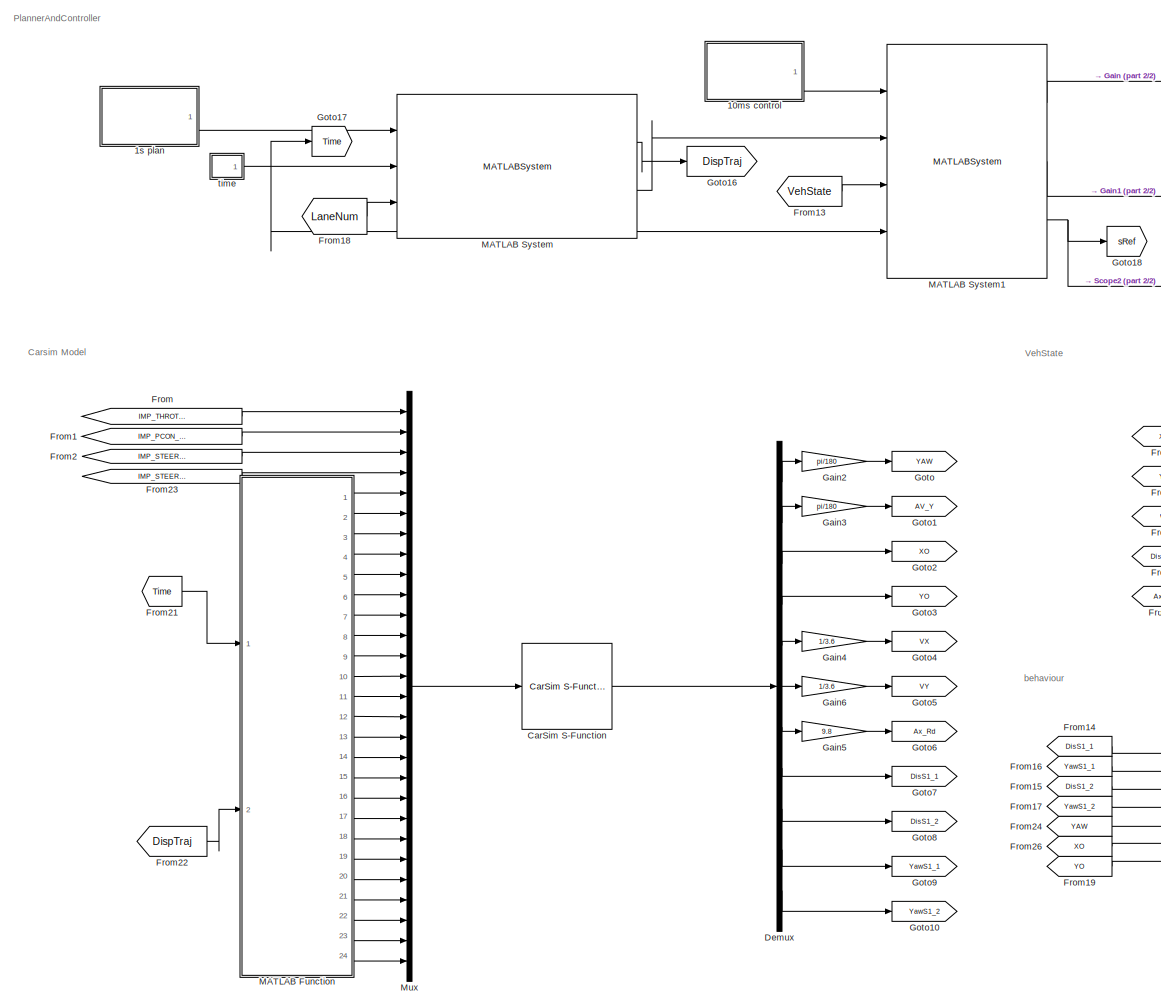
[diagram: root canvas - part 1/2, left side, full height]
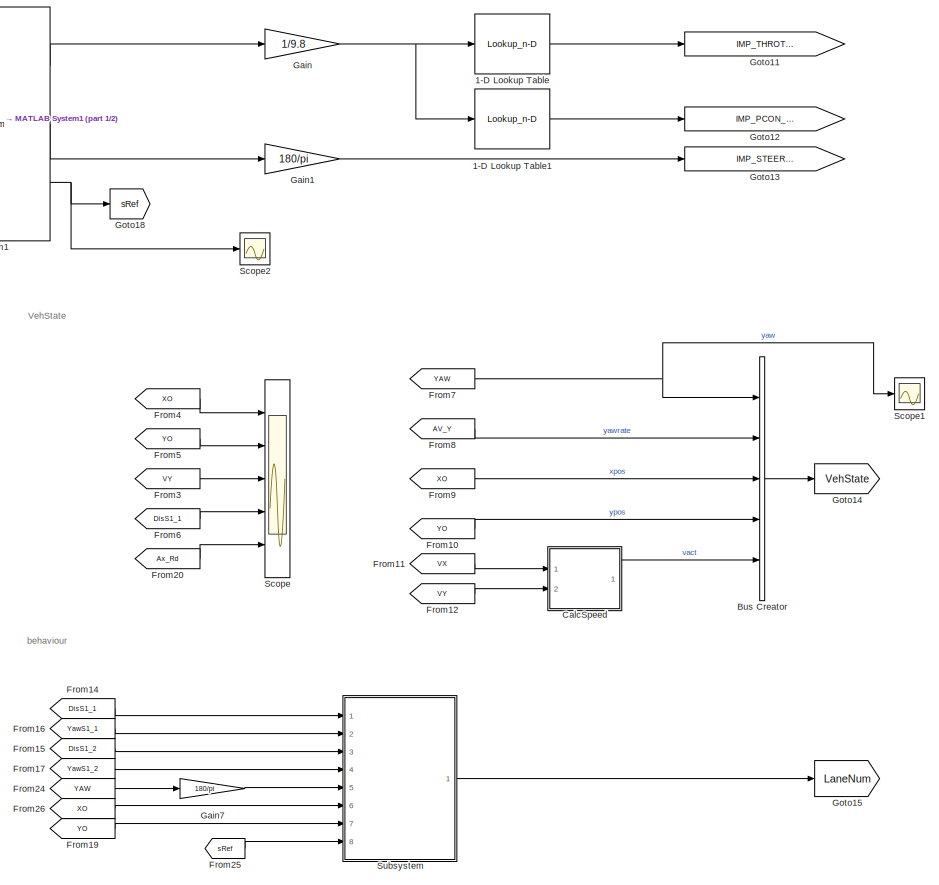
[diagram: root canvas - part 2/2, right side, full height]
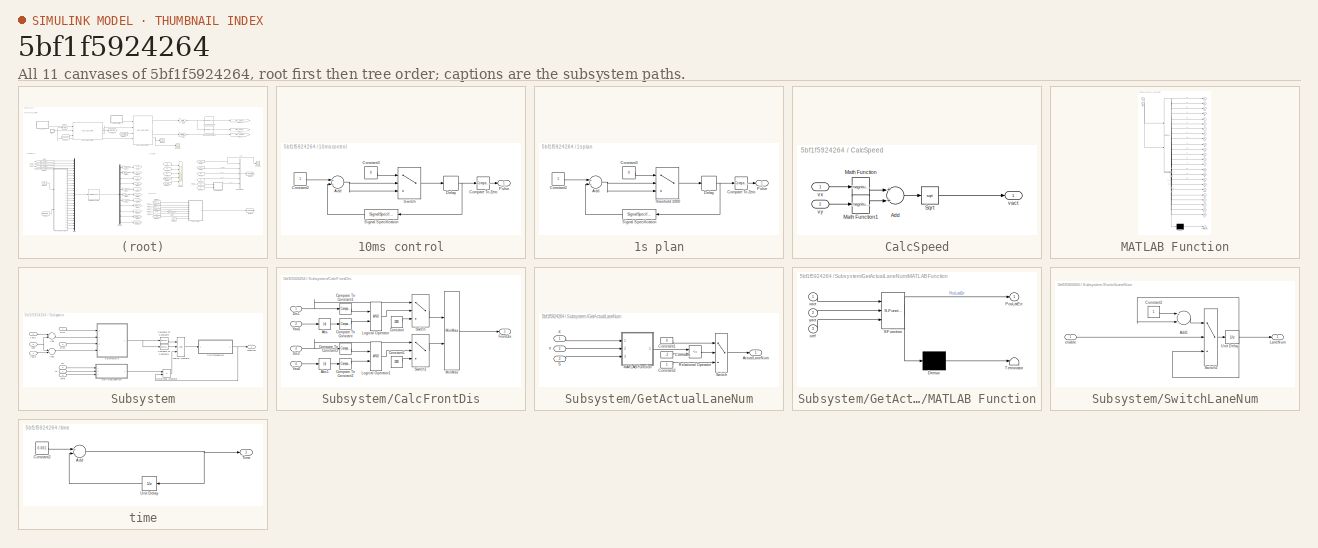
[diagram: thumbnail index - all 11 canvases of the model, root first then tree order]
MODEL slx_5bf1f5924264
KIND model
CONFIG AbsTol = auto
CONFIG EnableMultiTasking = off
CONFIG FixedStep = 0.001
CONFIG MaxStep = auto
CONFIG MinStep = auto
CONFIG PostLoadFcn = load vehStateObject.mat;
CONFIG RelTol = 1e-3
CONFIG SampleTimeConstraint = Unconstrained
CONFIG Solver = FixedStepDiscrete
CONFIG SolverName = FixedStepDiscrete
CONFIG StartTime = 0.0
CONFIG StopTime = 80
BLOCK [Lookup_n-D] 1-D Lookup Table
  BreakpointsForDimension1 = [-0.028, -0.023, -0.017, -0.012, -0.0075, -0.0035, 0.0005, 0.0085, 0.016,0.04, 0.125, 0.45]
  ExtrapMethod = Clip
  InternalRulePriority = Speed
  NumberOfTableDimensions = 1
  Ports = [1, 1]
  RndMeth = Simplest
  Table = [0, 0.01, 0.02, 0.03, 0.04, 0.05, 0.06, 0.08, 0.1, 0.11, 0.15, 1]
BLOCK [Lookup_n-D] 1-D Lookup Table1
  BreakpointsForDimension1 = [-0.175,-0.13,-0.0875,-0.073,-0.057,-0.045,-0.028]
  ExtrapMethod = Clip
  InternalRulePriority = Speed
  NumberOfTableDimensions = 1
  Ports = [1, 1]
  RndMeth = Simplest
  Table = [1,0.7, 0.4, 0.3, 0.2, 0.1, 0]
BLOCK [SubSystem] 10ms control
  Ports = [0, 1]
  RequestExecContextInheritance = off
  Variant = off
BLOCK [Sum] 10ms control/Add
  InputSameDT = off
  OutDataTypeStr = Inherit: Inherit via internal rule
  Ports = [2, 1]
  SaturateOnIntegerOverflow = off
BLOCK [Reference] 10ms control/Compare To Zero  REF=simulink/Logic and Bit
Operations/Compare
To Zero
  Ports = [1, 1]
  SourceBlock = simulink/Logic and Bit\nOperations/Compare\nTo Zero
  SourceProductBaseCode = SL
  SourceProductName = Simulink
  SourceType = Compare To Zero
BLOCK [Constant] 10ms control/Constant2
BLOCK [Constant] 10ms control/Constant3
  Value = 0
BLOCK [Delay] 10ms control/Delay
  DelayLength = 1
  InputPortMap = u0
  Ports = [1, 1]
BLOCK [Outport] 10ms control/Pulse
  IconDisplay = Port number
BLOCK [SignalSpecification] 10ms control/Signal Specification
  SampleTime = 0.001
BLOCK [Switch] 10ms control/Switch
  InputSameDT = off
  SaturateOnIntegerOverflow = off
  Threshold = 10
BLOCK [SubSystem] 1s plan
  Ports = [0, 1]
  RequestExecContextInheritance = off
  Variant = off
BLOCK [Sum] 1s plan/Add
  InputSameDT = off
  OutDataTypeStr = Inherit: Inherit via internal rule
  Ports = [2, 1]
  SaturateOnIntegerOverflow = off
BLOCK [Reference] 1s plan/Compare To Zero  REF=simulink/Logic and Bit
Operations/Compare
To Zero
  Ports = [1, 1]
  SourceBlock = simulink/Logic and Bit\nOperations/Compare\nTo Zero
  SourceProductBaseCode = SL
  SourceProductName = Simulink
  SourceType = Compare To Zero
BLOCK [Constant] 1s plan/Constant2
BLOCK [Constant] 1s plan/Constant3
  Value = 0
BLOCK [Delay] 1s plan/Delay
  DelayLength = 1
  InputPortMap = u0
  Ports = [1, 1]
BLOCK [Outport] 1s plan/Pulse
  IconDisplay = Port number
BLOCK [SignalSpecification] 1s plan/Signal Specification
  SampleTime = 0.001
BLOCK [Switch] 1s plan/Threshold 1000
  InputSameDT = off
  SaturateOnIntegerOverflow = off
  Threshold = 1000
BLOCK [BusCreator] Bus Creator
  DisplayOption = bar
  InheritFromInputs = on
  Inputs = 5
  OutDataTypeStr = Bus: VehStateObject
  Ports = [5, 1]
BLOCK [SubSystem] CalcSpeed
  Ports = [2, 1]
  RequestExecContextInheritance = off
  Variant = off
BLOCK [Sum] CalcSpeed/Add
  InputSameDT = off
  OutDataTypeStr = Inherit: Inherit via internal rule
  Ports = [2, 1]
  SaturateOnIntegerOverflow = off
BLOCK [Math] CalcSpeed/Math Function
  Operator = magnitude^2
  Ports = [1, 1]
BLOCK [Math] CalcSpeed/Math Function1
  Operator = magnitude^2
  Ports = [1, 1]
BLOCK [Sqrt] CalcSpeed/Sqrt
BLOCK [Outport] CalcSpeed/vact
  IconDisplay = Port number
BLOCK [Inport] CalcSpeed/vx
  IconDisplay = Port number
BLOCK [Inport] CalcSpeed/vy
  IconDisplay = Port number
  Port = 2
BLOCK [Reference] CarSim S-Function  REF=Solver_SF/CarSim S-Function
  Ports = [1, 1]
  Priority = 1
  SourceBlock = Solver_SF/CarSim S-Function
  SourceType = Vehicle math model library
BLOCK [Demux] Demux
  DisplayOption = bar
  Outputs = 11
  Ports = [1, 11]
BLOCK [From] From
  GotoTag = IMP_THROTTLE_ENGINE
BLOCK [From] From1
  GotoTag = IMP_PCON_BK
BLOCK [From] From10
  GotoTag = YO
BLOCK [From] From11
  GotoTag = VX
BLOCK [From] From12
  GotoTag = VY
BLOCK [From] From13
  GotoTag = VehState
BLOCK [From] From14
  GotoTag = DisS1_1
BLOCK [From] From15
  GotoTag = DisS1_2
BLOCK [From] From16
  GotoTag = YawS1_1
BLOCK [From] From17
  GotoTag = YawS1_2
BLOCK [From] From18
  GotoTag = LaneNum
BLOCK [From] From19
  GotoTag = YO
BLOCK [From] From2
  GotoTag = IMP_STEER_SW
BLOCK [From] From20
  GotoTag = Ax_Rd
BLOCK [From] From21
  GotoTag = Time
BLOCK [From] From22
  GotoTag = DispTraj
BLOCK [From] From23
  GotoTag = IMP_STEER_SW
BLOCK [From] From24
  GotoTag = YAW
BLOCK [From] From25
  GotoTag = sRef
BLOCK [From] From26
  GotoTag = XO
BLOCK [From] From3
  GotoTag = VY
BLOCK [From] From4
  GotoTag = XO
BLOCK [From] From5
  GotoTag = YO
BLOCK [From] From6
  GotoTag = DisS1_1
BLOCK [From] From7
  GotoTag = YAW
BLOCK [From] From8
  GotoTag = AV_Y
BLOCK [From] From9
  GotoTag = XO
BLOCK [Gain] Gain
  Gain = 1/9.8
  OutDataTypeStr = Inherit: Inherit via internal rule
  ParamDataTypeStr = Inherit: Inherit via internal rule
  SaturateOnIntegerOverflow = off
BLOCK [Gain] Gain1
  Gain = 180/pi
  OutDataTypeStr = Inherit: Inherit via internal rule
  ParamDataTypeStr = Inherit: Inherit via internal rule
  SaturateOnIntegerOverflow = off
BLOCK [Gain] Gain2
  Gain = pi/180
  OutDataTypeStr = Inherit: Inherit via internal rule
  ParamDataTypeStr = Inherit: Inherit via internal rule
  SaturateOnIntegerOverflow = off
BLOCK [Gain] Gain3
  Gain = pi/180
  OutDataTypeStr = Inherit: Inherit via internal rule
  ParamDataTypeStr = Inherit: Inherit via internal rule
  SaturateOnIntegerOverflow = off
BLOCK [Gain] Gain4
  Gain = 1/3.6
  OutDataTypeStr = Inherit: Inherit via internal rule
  ParamDataTypeStr = Inherit: Inherit via internal rule
  SaturateOnIntegerOverflow = off
BLOCK [Gain] Gain5
  Gain = 9.8
  OutDataTypeStr = Inherit: Inherit via internal rule
  ParamDataTypeStr = Inherit: Inherit via internal rule
  SaturateOnIntegerOverflow = off
BLOCK [Gain] Gain6
  Gain = 1/3.6
  OutDataTypeStr = Inherit: Inherit via internal rule
  ParamDataTypeStr = Inherit: Inherit via internal rule
  SaturateOnIntegerOverflow = off
BLOCK [Gain] Gain7
  Gain = 180/pi
  OutDataTypeStr = Inherit: Inherit via internal rule
  ParamDataTypeStr = Inherit: Inherit via internal rule
  SaturateOnIntegerOverflow = off
BLOCK [Goto] Goto
  GotoTag = YAW
BLOCK [Goto] Goto1
  GotoTag = AV_Y
BLOCK [Goto] Goto10
  GotoTag = YawS1_2
BLOCK [Goto] Goto11
  GotoTag = IMP_THROTTLE_ENGINE
BLOCK [Goto] Goto12
  GotoTag = IMP_PCON_BK
BLOCK [Goto] Goto13
  GotoTag = IMP_STEER_SW
BLOCK [Goto] Goto14
  GotoTag = VehState
BLOCK [Goto] Goto15
  GotoTag = LaneNum
BLOCK [Goto] Goto16
  GotoTag = DispTraj
BLOCK [Goto] Goto17
  GotoTag = Time
BLOCK [Goto] Goto18
  GotoTag = sRef
BLOCK [Goto] Goto2
  GotoTag = XO
BLOCK [Goto] Goto3
  GotoTag = YO
BLOCK [Goto] Goto4
  GotoTag = VX
BLOCK [Goto] Goto5
  GotoTag = VY
BLOCK [Goto] Goto6
  GotoTag = Ax_Rd
BLOCK [Goto] Goto7
  GotoTag = DisS1_1
BLOCK [Goto] Goto8
  GotoTag = DisS1_2
BLOCK [Goto] Goto9
  GotoTag = YawS1_1
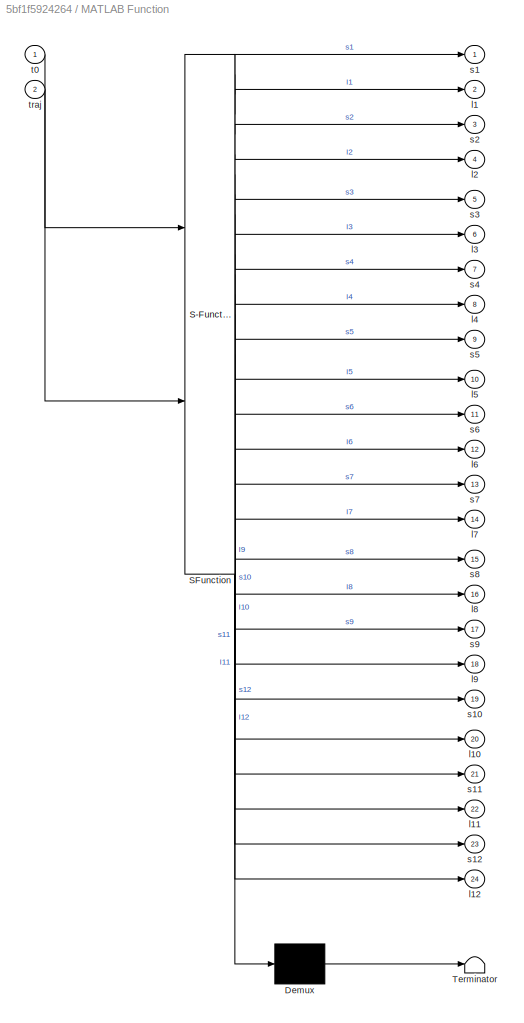
BLOCK [SubSystem] MATLAB Function
  ErrorFcn = Stateflow.Translate.translate
  PermitHierarchicalResolution = ExplicitOnly
  Ports = [2, 24]
  RequestExecContextInheritance = off
  SFBlockType = MATLAB Function
  TreatAsAtomicUnit = on
  Variant = off
BLOCK [Demux] MATLAB Function/ Demux 
  Outputs = 1
  Ports = [1, 1]
BLOCK [S-Function] MATLAB Function/ SFunction 
  EnableBusSupport = on
  FunctionName = sf_sfun
  PortCounts = [2 25]
  Ports = [2, 25]
  SFcnIsStateOwnerBlock = off
  SFunctionDeploymentMode = off
  Tag = Stateflow S-Function LaneChangeRoad2B_Disp 2
BLOCK [Terminator] MATLAB Function/ Terminator 
BLOCK [Outport] MATLAB Function/l1
  IconDisplay = Port number
  Port = 2
BLOCK [Outport] MATLAB Function/l10
  IconDisplay = Port number
  Port = 20
BLOCK [Outport] MATLAB Function/l11
  IconDisplay = Port number
  Port = 22
BLOCK [Outport] MATLAB Function/l12
  IconDisplay = Port number
  Port = 24
BLOCK [Outport] MATLAB Function/l2
  IconDisplay = Port number
  Port = 4
BLOCK [Outport] MATLAB Function/l3
  IconDisplay = Port number
  Port = 6
BLOCK [Outport] MATLAB Function/l4
  IconDisplay = Port number
  Port = 8
BLOCK [Outport] MATLAB Function/l5
  IconDisplay = Port number
  Port = 10
BLOCK [Outport] MATLAB Function/l6
  IconDisplay = Port number
  Port = 12
BLOCK [Outport] MATLAB Function/l7
  IconDisplay = Port number
  Port = 14
BLOCK [Outport] MATLAB Function/l8
  IconDisplay = Port number
  Port = 16
BLOCK [Outport] MATLAB Function/l9
  IconDisplay = Port number
  Port = 18
BLOCK [Outport] MATLAB Function/s1
  IconDisplay = Port number
BLOCK [Outport] MATLAB Function/s10
  IconDisplay = Port number
  Port = 19
BLOCK [Outport] MATLAB Function/s11
  IconDisplay = Port number
  Port = 21
BLOCK [Outport] MATLAB Function/s12
  IconDisplay = Port number
  Port = 23
BLOCK [Outport] MATLAB Function/s2
  IconDisplay = Port number
  Port = 3
BLOCK [Outport] MATLAB Function/s3
  IconDisplay = Port number
  Port = 5
BLOCK [Outport] MATLAB Function/s4
  IconDisplay = Port number
  Port = 7
BLOCK [Outport] MATLAB Function/s5
  IconDisplay = Port number
  Port = 9
BLOCK [Outport] MATLAB Function/s6
  IconDisplay = Port number
  Port = 11
BLOCK [Outport] MATLAB Function/s7
  IconDisplay = Port number
  Port = 13
BLOCK [Outport] MATLAB Function/s8
  IconDisplay = Port number
  Port = 15
BLOCK [Outport] MATLAB Function/s9
  IconDisplay = Port number
  Port = 17
BLOCK [Inport] MATLAB Function/t0
  IconDisplay = Port number
BLOCK [Inport] MATLAB Function/traj
  IconDisplay = Port number
  Port = 2
BLOCK [MATLABSystem] MATLAB System
  MaskDisplay = disp('LaneChangePlanner2');\nport_label('input',1,'replanflag');\nport_label('input',2,'t0');\nport_label('input',3,'lanenum');\nport_label('output',1,'trajDisp');\nport_label('output',2,'trajRet');
  MaskType = LaneChangePlanner2
  Ports = [3, 2]
  SimulateUsing = Interpreted execution
  System = LaneChangePlanner2
BLOCK [MATLABSystem] MATLAB System1
  MaskDisplay = disp('MPCControlB');\nport_label('input',1,'controlFlag');\nport_label('input',2,'traj_ref');\nport_label('input',3,'veh_state');\nport_label('input',4,'t');\nport_label('output',1,'acc');\nport_label('output',2,'steer');\nport_label('output',3,'sRef');
  MaskType = MPCControlB
  Ports = [4, 3]
  SimulateUsing = Interpreted execution
  System = MPCControlB
BLOCK [Mux] Mux
  DisplayOption = bar
  Inputs = 28
  Ports = [28, 1]
BLOCK [Scope] Scope
  NumInputPorts = 5
  Ports = [5]
  ScopeSpecificationString = Simulink.scopes.TimeScopeBlockCfg('CurrentConfiguration', extmgr.ConfigurationSet(extmgr.Configuration('Core','General UI',true),extmgr.Configuration('Core','Source UI',true),extmgr.Configuration('Sources','WiredSimulink',true),extmgr.Configuration('Visuals','Time Domain',true,'SerializedDisplays',{struct('MinYLimReal','-56.5998','MaxYLimReal','509.39818','YLabelReal','','MinYLimMag','0.00000','Ma...<+3381ch>
BLOCK [Scope] Scope1
  NumInputPorts = 1
  Ports = [1]
  ScopeSpecificationString = Simulink.scopes.TimeScopeBlockCfg('CurrentConfiguration', extmgr.ConfigurationSet(extmgr.Configuration('Core','General UI',true),extmgr.Configuration('Core','Source UI',true),extmgr.Configuration('Sources','WiredSimulink',true,'DataLoggingVariableName','ScopeData7'),extmgr.Configuration('Visuals','Time Domain',true),extmgr.Configuration('Tools','Plot Navigation',true),extmgr.Configuration('Tools',...<+40ch>
BLOCK [Scope] Scope2
  NumInputPorts = 1
  Ports = [1]
  ScopeSpecificationString = Simulink.scopes.TimeScopeBlockCfg('CurrentConfiguration', extmgr.ConfigurationSet(extmgr.Configuration('Core','General UI',true),extmgr.Configuration('Core','Source UI',true),extmgr.Configuration('Sources','WiredSimulink',true,'DataLoggingVariableName','ScopeData3'),extmgr.Configuration('Visuals','Time Domain',true,'SerializedDisplays',{struct('MinYLimReal','-89.375','MaxYLimReal','805.375','YLabe...<+1398ch>
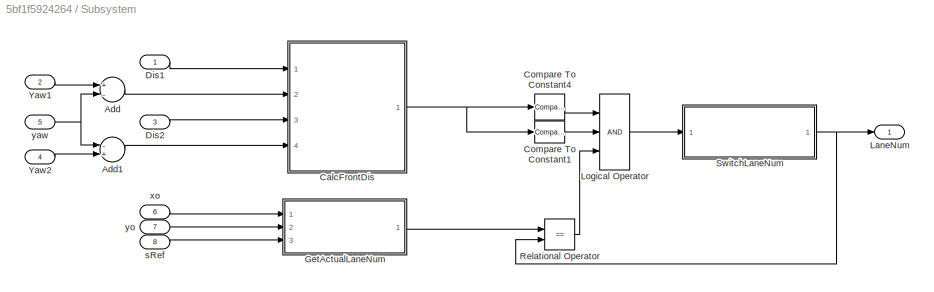
BLOCK [SubSystem] Subsystem
  Ports = [8, 1]
  RequestExecContextInheritance = off
  Variant = off
BLOCK [Sum] Subsystem/Add
  InputSameDT = off
  Inputs = +-
  OutDataTypeStr = Inherit: Inherit via internal rule
  Ports = [2, 1]
  SaturateOnIntegerOverflow = off
BLOCK [Sum] Subsystem/Add1
  InputSameDT = off
  Inputs = -+
  OutDataTypeStr = Inherit: Inherit via internal rule
  Ports = [2, 1]
  SaturateOnIntegerOverflow = off
BLOCK [SubSystem] Subsystem/CalcFrontDis
  Ports = [4, 1]
  RequestExecContextInheritance = off
  Variant = off
BLOCK [Abs] Subsystem/CalcFrontDis/Abs
  SaturateOnIntegerOverflow = off
BLOCK [Abs] Subsystem/CalcFrontDis/Abs1
  SaturateOnIntegerOverflow = off
BLOCK [Reference] Subsystem/CalcFrontDis/Compare To Constant  REF=simulink/Logic and Bit
Operations/Compare
To Constant
  Ports = [1, 1]
  SourceBlock = simulink/Logic and Bit\nOperations/Compare\nTo Constant
  SourceProductBaseCode = SL
  SourceProductName = Simulink
  SourceType = Compare To Constant
BLOCK [Reference] Subsystem/CalcFrontDis/Compare To Constant1  REF=simulink/Logic and Bit
Operations/Compare
To Constant
  Ports = [1, 1]
  SourceBlock = simulink/Logic and Bit\nOperations/Compare\nTo Constant
  SourceProductBaseCode = SL
  SourceProductName = Simulink
  SourceType = Compare To Constant
BLOCK [Reference] Subsystem/CalcFrontDis/Compare To Constant2  REF=simulink/Logic and Bit
Operations/Compare
To Constant
  Ports = [1, 1]
  SourceBlock = simulink/Logic and Bit\nOperations/Compare\nTo Constant
  SourceProductBaseCode = SL
  SourceProductName = Simulink
  SourceType = Compare To Constant
BLOCK [Reference] Subsystem/CalcFrontDis/Compare To Constant3  REF=simulink/Logic and Bit
Operations/Compare
To Constant
  Ports = [1, 1]
  SourceBlock = simulink/Logic and Bit\nOperations/Compare\nTo Constant
  SourceProductBaseCode = SL
  SourceProductName = Simulink
  SourceType = Compare To Constant
BLOCK [Constant] Subsystem/CalcFrontDis/Constant
  Value = 1000
BLOCK [Constant] Subsystem/CalcFrontDis/Constant1
  Value = 1000
BLOCK [Inport] Subsystem/CalcFrontDis/Dis1
  IconDisplay = Port number
BLOCK [Inport] Subsystem/CalcFrontDis/Dis2
  IconDisplay = Port number
  Port = 3
BLOCK [Outport] Subsystem/CalcFrontDis/FrontDis
  IconDisplay = Port number
BLOCK [Logic] Subsystem/CalcFrontDis/Logical Operator
  AllPortsSameDT = off
  OutDataTypeStr = boolean
  Ports = [2, 1]
BLOCK [Logic] Subsystem/CalcFrontDis/Logical Operator1
  AllPortsSameDT = off
  OutDataTypeStr = boolean
  Ports = [2, 1]
BLOCK [MinMax] Subsystem/CalcFrontDis/MinMax
  InputSameDT = off
  Inputs = 2
  Ports = [2, 1]
  SaturateOnIntegerOverflow = off
BLOCK [Switch] Subsystem/CalcFrontDis/Switch
  Criteria = u2 ~= 0
  InputSameDT = off
  SaturateOnIntegerOverflow = off
BLOCK [Switch] Subsystem/CalcFrontDis/Switch1
  Criteria = u2 ~= 0
  InputSameDT = off
  SaturateOnIntegerOverflow = off
BLOCK [Inport] Subsystem/CalcFrontDis/Yaw1
  IconDisplay = Port number
  Port = 2
BLOCK [Inport] Subsystem/CalcFrontDis/Yaw2
  IconDisplay = Port number
  Port = 4
BLOCK [Reference] Subsystem/Compare To Constant1  REF=simulink/Logic and Bit
Operations/Compare
To Constant
  Ports = [1, 1]
  SourceBlock = simulink/Logic and Bit\nOperations/Compare\nTo Constant
  SourceProductBaseCode = SL
  SourceProductName = Simulink
  SourceType = Compare To Constant
BLOCK [Reference] Subsystem/Compare To Constant4  REF=simulink/Logic and Bit
Operations/Compare
To Constant
  Ports = [1, 1]
  SourceBlock = simulink/Logic and Bit\nOperations/Compare\nTo Constant
  SourceProductBaseCode = SL
  SourceProductName = Simulink
  SourceType = Compare To Constant
BLOCK [Inport] Subsystem/Dis1
  IconDisplay = Port number
BLOCK [Inport] Subsystem/Dis2
  IconDisplay = Port number
  Port = 3
BLOCK [SubSystem] Subsystem/GetActualLaneNum
  Ports = [3, 1]
  RequestExecContextInheritance = off
  Variant = off
BLOCK [Outport] Subsystem/GetActualLaneNum/ActualLaneNum
  IconDisplay = Port number
BLOCK [Constant] Subsystem/GetActualLaneNum/Constant
  Value = -2
BLOCK [Constant] Subsystem/GetActualLaneNum/Constant1
  Value = 0
BLOCK [Constant] Subsystem/GetActualLaneNum/Constant2
BLOCK [SubSystem] Subsystem/GetActualLaneNum/MATLAB Function
  ErrorFcn = Stateflow.Translate.translate
  PermitHierarchicalResolution = ExplicitOnly
  Ports = [3, 1]
  RequestExecContextInheritance = off
  SFBlockType = MATLAB Function
  TreatAsAtomicUnit = on
  Variant = off
BLOCK [Demux] Subsystem/GetActualLaneNum/MATLAB Function/ Demux 
  Outputs = 1
  Ports = [1, 1]
BLOCK [S-Function] Subsystem/GetActualLaneNum/MATLAB Function/ SFunction 
  EnableBusSupport = on
  FunctionName = sf_sfun
  PortCounts = [3 2]
  Ports = [3, 2]
  SFcnIsStateOwnerBlock = off
  SFunctionDeploymentMode = off
  Tag = Stateflow S-Function LaneChangeRoad2B_Disp 1
BLOCK [Terminator] Subsystem/GetActualLaneNum/MATLAB Function/ Terminator 
BLOCK [Outport] Subsystem/GetActualLaneNum/MATLAB Function/PosLatErr
  IconDisplay = Port number
BLOCK [Inport] Subsystem/GetActualLaneNum/MATLAB Function/sref
  IconDisplay = Port number
  Port = 3
BLOCK [Inport] Subsystem/GetActualLaneNum/MATLAB Function/xact
  IconDisplay = Port number
BLOCK [Inport] Subsystem/GetActualLaneNum/MATLAB Function/yact
  IconDisplay = Port number
  Port = 2
BLOCK [RelationalOperator] Subsystem/GetActualLaneNum/Relational Operator
  InputSameDT = off
  Operator = <=
  OutDataTypeStr = boolean
  Ports = [2, 1]
  RndMeth = Simplest
BLOCK [Inport] Subsystem/GetActualLaneNum/S
  IconDisplay = Port number
  Port = 3
BLOCK [Switch] Subsystem/GetActualLaneNum/Switch
  Criteria = u2 ~= 0
  InputSameDT = off
  SaturateOnIntegerOverflow = off
BLOCK [Inport] Subsystem/GetActualLaneNum/X
  IconDisplay = Port number
BLOCK [Inport] Subsystem/GetActualLaneNum/Y
  IconDisplay = Port number
  Port = 2
BLOCK [Outport] Subsystem/LaneNum
  IconDisplay = Port number
BLOCK [Logic] Subsystem/Logical Operator
  AllPortsSameDT = off
  Inputs = 3
  OutDataTypeStr = boolean
  Ports = [3, 1]
BLOCK [RelationalOperator] Subsystem/Relational Operator
  InputSameDT = off
  Operator = ==
  OutDataTypeStr = boolean
  Ports = [2, 1]
  RndMeth = Simplest
BLOCK [SubSystem] Subsystem/SwitchLaneNum
  Ports = [1, 1]
  RequestExecContextInheritance = off
  Variant = off
BLOCK [Sum] Subsystem/SwitchLaneNum/Add1
  InputSameDT = off
  Inputs = +-
  OutDataTypeStr = Inherit: Inherit via internal rule
  Ports = [2, 1]
  SaturateOnIntegerOverflow = off
BLOCK [Constant] Subsystem/SwitchLaneNum/Constant2
BLOCK [Outport] Subsystem/SwitchLaneNum/LaneNum
  IconDisplay = Port number
BLOCK [Switch] Subsystem/SwitchLaneNum/Switch2
  Criteria = u2 ~= 0
  InputSameDT = off
  SaturateOnIntegerOverflow = off
BLOCK [UnitDelay] Subsystem/SwitchLaneNum/Unit Delay
  InitialCondition = 1
  InputProcessing = Elements as channels (sample based)
  SampleTime = -1
BLOCK [Inport] Subsystem/SwitchLaneNum/enable
  IconDisplay = Port number
BLOCK [Inport] Subsystem/Yaw1
  IconDisplay = Port number
  Port = 2
BLOCK [Inport] Subsystem/Yaw2
  IconDisplay = Port number
  Port = 4
BLOCK [Inport] Subsystem/sRef
  IconDisplay = Port number
  OutDataTypeStr = double
  Port = 8
  PortDimensions = [1,1]
BLOCK [Inport] Subsystem/xo
  IconDisplay = Port number
  Port = 6
BLOCK [Inport] Subsystem/yaw
  IconDisplay = Port number
  Port = 5
BLOCK [Inport] Subsystem/yo
  IconDisplay = Port number
  Port = 7
BLOCK [SubSystem] time
  Ports = [0, 1]
  RequestExecContextInheritance = off
  Variant = off
BLOCK [Sum] time/Add
  InputSameDT = off
  OutDataTypeStr = Inherit: Inherit via internal rule
  Ports = [2, 1]
  SaturateOnIntegerOverflow = off
BLOCK [Constant] time/Constant2
  Value = 0.001
BLOCK [Outport] time/Time
  IconDisplay = Port number
BLOCK [UnitDelay] time/Unit Delay
  InputProcessing = Elements as channels (sample based)
  SampleTime = -1
ANNOTATION (root): Carsim Model
ANNOTATION (root): PlannerAndController
ANNOTATION (root): VehState
ANNOTATION (root): behaviour
LINE 1-D Lookup Table1:1 -> Goto12:1
LINE 1-D Lookup Table:1 -> Goto11:1
NET 10ms control/Add:1 -> 10ms control/Switch:2, 10ms control/Switch:3
LINE 10ms control/Compare To Zero:1 -> 10ms control/Pulse:1
LINE 10ms control/Constant2:1 -> 10ms control/Add:1
LINE 10ms control/Constant3:1 -> 10ms control/Switch:1
NET 10ms control/Delay:1 -> 10ms control/Compare To Zero:1, 10ms control/Signal Specification:1
LINE 10ms control/Signal Specification:1 -> 10ms control/Add:2
LINE 10ms control/Switch:1 -> 10ms control/Delay:1
LINE 10ms control:1 -> MATLAB System1:1
NET 1s plan/Add:1 -> 1s plan/Threshold 1000:2, 1s plan/Threshold 1000:3
LINE 1s plan/Compare To Zero:1 -> 1s plan/Pulse:1
LINE 1s plan/Constant2:1 -> 1s plan/Add:1
LINE 1s plan/Constant3:1 -> 1s plan/Threshold 1000:1
NET 1s plan/Delay:1 -> 1s plan/Compare To Zero:1, 1s plan/Signal Specification:1
LINE 1s plan/Signal Specification:1 -> 1s plan/Add:2
LINE 1s plan/Threshold 1000:1 -> 1s plan/Delay:1
LINE 1s plan:1 -> MATLAB System:1
LINE Bus Creator:1 -> Goto14:1
LINE CalcSpeed/Add:1 -> CalcSpeed/Sqrt:1
LINE CalcSpeed/Math Function1:1 -> CalcSpeed/Add:2
LINE CalcSpeed/Math Function:1 -> CalcSpeed/Add:1
LINE CalcSpeed/Sqrt:1 -> CalcSpeed/vact:1
LINE CalcSpeed/vx:1 -> CalcSpeed/Math Function:1
LINE CalcSpeed/vy:1 -> CalcSpeed/Math Function1:1
LINE CalcSpeed:1 -> Bus Creator:5
LINE CarSim S-Function:1 -> Demux:1
LINE Demux:1 -> Gain2:1
LINE Demux:10 -> Goto9:1
LINE Demux:11 -> Goto10:1
LINE Demux:2 -> Gain3:1
LINE Demux:3 -> Goto2:1
LINE Demux:4 -> Goto3:1
LINE Demux:5 -> Gain4:1
LINE Demux:6 -> Gain6:1
LINE Demux:7 -> Gain5:1
LINE Demux:8 -> Goto7:1
LINE Demux:9 -> Goto8:1
LINE From10:1 -> Bus Creator:4
LINE From11:1 -> CalcSpeed:1
LINE From12:1 -> CalcSpeed:2
LINE From13:1 -> MATLAB System1:3
LINE From14:1 -> Subsystem:1
LINE From15:1 -> Subsystem:3
LINE From16:1 -> Subsystem:2
LINE From17:1 -> Subsystem:4
LINE From18:1 -> MATLAB System:3
LINE From19:1 -> Subsystem:7
LINE From1:1 -> Mux:2
LINE From20:1 -> Scope:5
LINE From21:1 -> MATLAB Function:1
LINE From22:1 -> MATLAB Function:2
LINE From23:1 -> Mux:4
LINE From24:1 -> Gain7:1
LINE From25:1 -> Subsystem:8
LINE From26:1 -> Subsystem:6
LINE From2:1 -> Mux:3
LINE From3:1 -> Scope:3
LINE From4:1 -> Scope:1
LINE From5:1 -> Scope:2
LINE From6:1 -> Scope:4
NET From7:1 -> Bus Creator:1, Scope1:1
LINE From8:1 -> Bus Creator:2
LINE From9:1 -> Bus Creator:3
LINE From:1 -> Mux:1
LINE Gain1:1 -> Goto13:1
LINE Gain2:1 -> Goto:1
LINE Gain3:1 -> Goto1:1
LINE Gain4:1 -> Goto4:1
LINE Gain5:1 -> Goto6:1
LINE Gain6:1 -> Goto5:1
LINE Gain7:1 -> Subsystem:5
NET Gain:1 -> 1-D Lookup Table1:1, 1-D Lookup Table:1
LINE MATLAB Function:1 -> Mux:5
LINE MATLAB Function:10 -> Mux:14
LINE MATLAB Function:11 -> Mux:15
LINE MATLAB Function:12 -> Mux:16
LINE MATLAB Function:13 -> Mux:17
LINE MATLAB Function:14 -> Mux:18
LINE MATLAB Function:15 -> Mux:19
LINE MATLAB Function:16 -> Mux:20
LINE MATLAB Function:17 -> Mux:21
LINE MATLAB Function:18 -> Mux:22
LINE MATLAB Function:19 -> Mux:23
LINE MATLAB Function:2 -> Mux:6
LINE MATLAB Function:20 -> Mux:24
LINE MATLAB Function:21 -> Mux:25
LINE MATLAB Function:22 -> Mux:26
LINE MATLAB Function:23 -> Mux:27
LINE MATLAB Function:24 -> Mux:28
LINE MATLAB Function:3 -> Mux:7
LINE MATLAB Function:4 -> Mux:8
LINE MATLAB Function:5 -> Mux:9
LINE MATLAB Function:6 -> Mux:10
LINE MATLAB Function:7 -> Mux:11
LINE MATLAB Function:8 -> Mux:12
LINE MATLAB Function:9 -> Mux:13
LINE MATLAB System1:1 -> Gain:1
LINE MATLAB System1:2 -> Gain1:1
NET MATLAB System1:3 -> Goto18:1, Scope2:1
LINE MATLAB System:1 -> Goto16:1
LINE MATLAB System:2 -> MATLAB System1:2
LINE Mux:1 -> CarSim S-Function:1
LINE Subsystem/Add1:1 -> Subsystem/CalcFrontDis:4
LINE Subsystem/Add:1 -> Subsystem/CalcFrontDis:2
LINE Subsystem/CalcFrontDis/Abs1:1 -> Subsystem/CalcFrontDis/Compare To Constant2:1
LINE Subsystem/CalcFrontDis/Abs:1 -> Subsystem/CalcFrontDis/Compare To Constant:1
LINE Subsystem/CalcFrontDis/Compare To Constant1:1 -> Subsystem/CalcFrontDis/Logical Operator:1
LINE Subsystem/CalcFrontDis/Compare To Constant2:1 -> Subsystem/CalcFrontDis/Logical Operator1:2
LINE Subsystem/CalcFrontDis/Compare To Constant3:1 -> Subsystem/CalcFrontDis/Logical Operator1:1
LINE Subsystem/CalcFrontDis/Compare To Constant:1 -> Subsystem/CalcFrontDis/Logical Operator:2
LINE Subsystem/CalcFrontDis/Constant1:1 -> Subsystem/CalcFrontDis/Switch1:3
LINE Subsystem/CalcFrontDis/Constant:1 -> Subsystem/CalcFrontDis/Switch:3
NET Subsystem/CalcFrontDis/Dis1:1 -> Subsystem/CalcFrontDis/Compare To Constant1:1, Subsystem/CalcFrontDis/Switch:1
NET Subsystem/CalcFrontDis/Dis2:1 -> Subsystem/CalcFrontDis/Compare To Constant3:1, Subsystem/CalcFrontDis/Switch1:1
LINE Subsystem/CalcFrontDis/Logical Operator1:1 -> Subsystem/CalcFrontDis/Switch1:2
LINE Subsystem/CalcFrontDis/Logical Operator:1 -> Subsystem/CalcFrontDis/Switch:2
LINE Subsystem/CalcFrontDis/MinMax:1 -> Subsystem/CalcFrontDis/FrontDis:1
LINE Subsystem/CalcFrontDis/Switch1:1 -> Subsystem/CalcFrontDis/MinMax:2
LINE Subsystem/CalcFrontDis/Switch:1 -> Subsystem/CalcFrontDis/MinMax:1
LINE Subsystem/CalcFrontDis/Yaw1:1 -> Subsystem/CalcFrontDis/Abs:1
LINE Subsystem/CalcFrontDis/Yaw2:1 -> Subsystem/CalcFrontDis/Abs1:1
NET Subsystem/CalcFrontDis:1 -> Subsystem/Compare To Constant1:1, Subsystem/Compare To Constant4:1
LINE Subsystem/Compare To Constant1:1 -> Subsystem/Logical Operator:2
LINE Subsystem/Compare To Constant4:1 -> Subsystem/Logical Operator:1
LINE Subsystem/Dis1:1 -> Subsystem/CalcFrontDis:1
LINE Subsystem/Dis2:1 -> Subsystem/CalcFrontDis:3
LINE Subsystem/GetActualLaneNum/Constant1:1 -> Subsystem/GetActualLaneNum/Switch:1
LINE Subsystem/GetActualLaneNum/Constant2:1 -> Subsystem/GetActualLaneNum/Switch:3
LINE Subsystem/GetActualLaneNum/Constant:1 -> Subsystem/GetActualLaneNum/Relational Operator:2
LINE Subsystem/GetActualLaneNum/MATLAB Function:1 -> Subsystem/GetActualLaneNum/Relational Operator:1
LINE Subsystem/GetActualLaneNum/Relational Operator:1 -> Subsystem/GetActualLaneNum/Switch:2
LINE Subsystem/GetActualLaneNum/S:1 -> Subsystem/GetActualLaneNum/MATLAB Function:3
LINE Subsystem/GetActualLaneNum/Switch:1 -> Subsystem/GetActualLaneNum/ActualLaneNum:1
LINE Subsystem/GetActualLaneNum/X:1 -> Subsystem/GetActualLaneNum/MATLAB Function:1
LINE Subsystem/GetActualLaneNum/Y:1 -> Subsystem/GetActualLaneNum/MATLAB Function:2
LINE Subsystem/GetActualLaneNum:1 -> Subsystem/Relational Operator:1
LINE Subsystem/Logical Operator:1 -> Subsystem/SwitchLaneNum:1
LINE Subsystem/Relational Operator:1 -> Subsystem/Logical Operator:3
LINE Subsystem/SwitchLaneNum/Add1:1 -> Subsystem/SwitchLaneNum/Switch2:1
LINE Subsystem/SwitchLaneNum/Constant2:1 -> Subsystem/SwitchLaneNum/Add1:1
LINE Subsystem/SwitchLaneNum/Switch2:1 -> Subsystem/SwitchLaneNum/Unit Delay:1
NET Subsystem/SwitchLaneNum/Unit Delay:1 -> Subsystem/SwitchLaneNum/Add1:2, Subsystem/SwitchLaneNum/LaneNum:1, Subsystem/SwitchLaneNum/Switch2:3
LINE Subsystem/SwitchLaneNum/enable:1 -> Subsystem/SwitchLaneNum/Switch2:2
NET Subsystem/SwitchLaneNum:1 -> Subsystem/LaneNum:1, Subsystem/Relational Operator:2
LINE Subsystem/Yaw1:1 -> Subsystem/Add:1
LINE Subsystem/Yaw2:1 -> Subsystem/Add1:2
LINE Subsystem/sRef:1 -> Subsystem/GetActualLaneNum:3
LINE Subsystem/xo:1 -> Subsystem/GetActualLaneNum:1
NET Subsystem/yaw:1 -> Subsystem/Add1:1, Subsystem/Add:2
LINE Subsystem/yo:1 -> Subsystem/GetActualLaneNum:2
LINE Subsystem:1 -> Goto15:1
NET time/Add:1 -> time/Time:1, time/Unit Delay:1
LINE time/Constant2:1 -> time/Add:1
LINE time/Unit Delay:1 -> time/Add:2
NET time:1 -> Goto17:1, MATLAB System1:4, MATLAB System:2
note: NET lines group one-source signal fan-out (src -> all destinations, sorted); 1:1 wires keep LINE
CHART Subsystem/GetActualLaneNum/MATLAB Function states=1 transitions=1
  STATE_LABEL 'eML_blk_kernel()'
  STATE_LABEL "SCRIPT:\nfunction PosLatErr = fcn(xact, yact, sref)\nmat = load('roadpointdata.mat');\nxs = mat.pointdata(:,1);\nys = mat.pointdata(:,2);\nphis = mat.pointdata(:,3);\nss = mat.pointdata(:,6);\nxref = interp1(ss, xs , sref);\nyref = interp1(ss, ys , sref);\nphiref = interp1(ss, phis , sref);\nPosLatErr = (yref-yact)*cos(phiref)-(xref-xact)*sin(phiref);\n\n"
CHART MATLAB Function states=1 transitions=1
  STATE_LABEL 'eML_blk_kernel()'
  STATE_LABEL 'SCRIPT:\nfunction [s1,l1,s2,l2,s3,l3,s4,l4,s5,l5,s6,l6,s7,l7,s8,l8,s9,l9,s10,l10,s11,l11,s12,l12] = GetDispTrajPoint(t0, traj)\nselectIdx = 1;\nfor i = 1:size(traj,1)\n    if abs(t0 - traj(i,3)) <= 0.0001\n        selectIdx = i;\n        break;\n    end\nend\nstep = 40;\nidx = step;\ns1 = traj(selectIdx + idx ,1);\nl1 = traj(selectIdx + idx,2);\n\nidx = idx + step;\ns2 = traj(selectIdx + idx,1);\nl2 = traj(select...<+807ch>'
